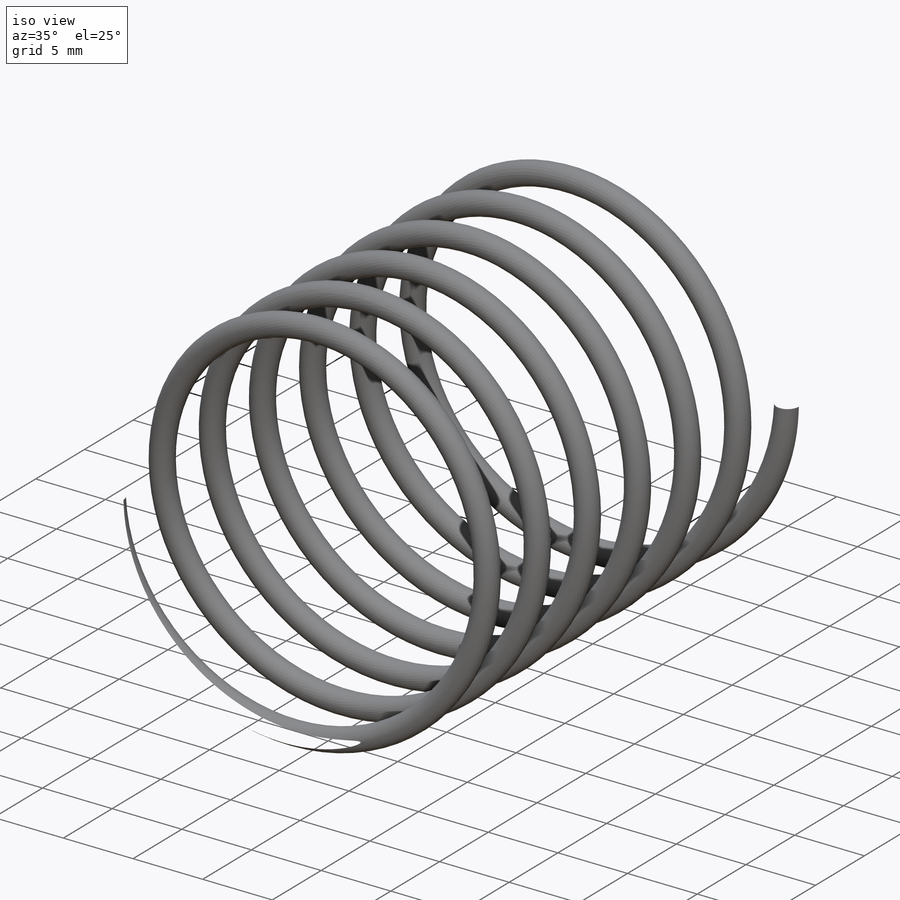
[diagram: iso view]
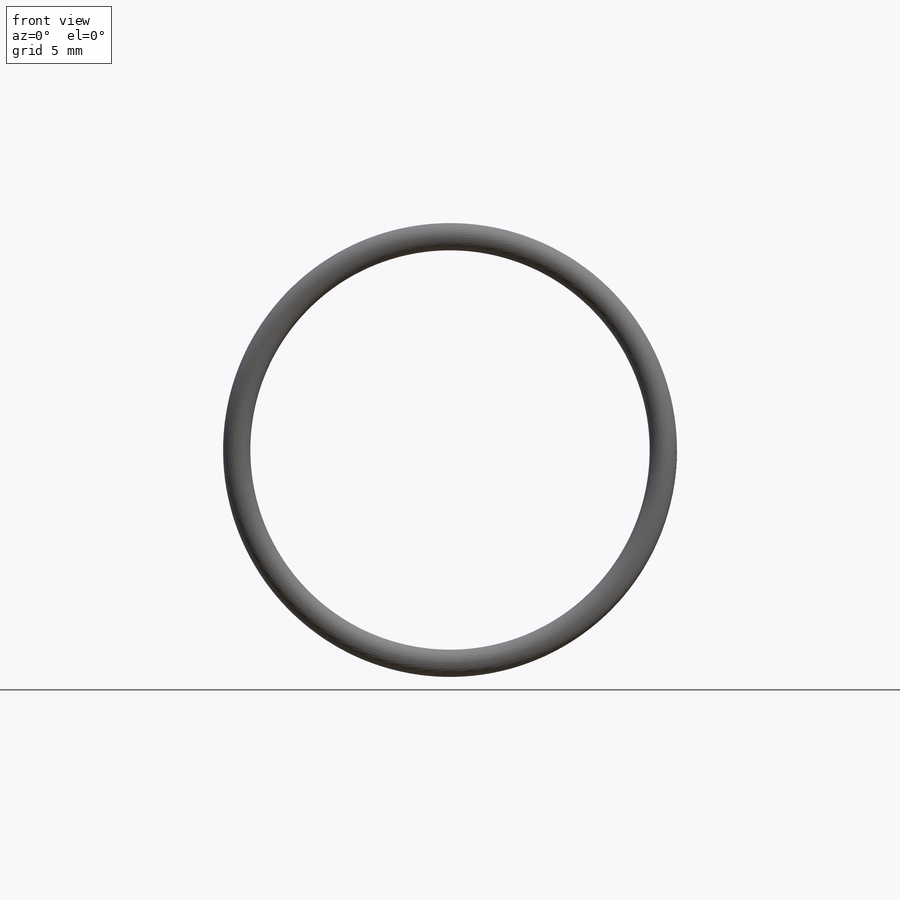
[diagram: front view]
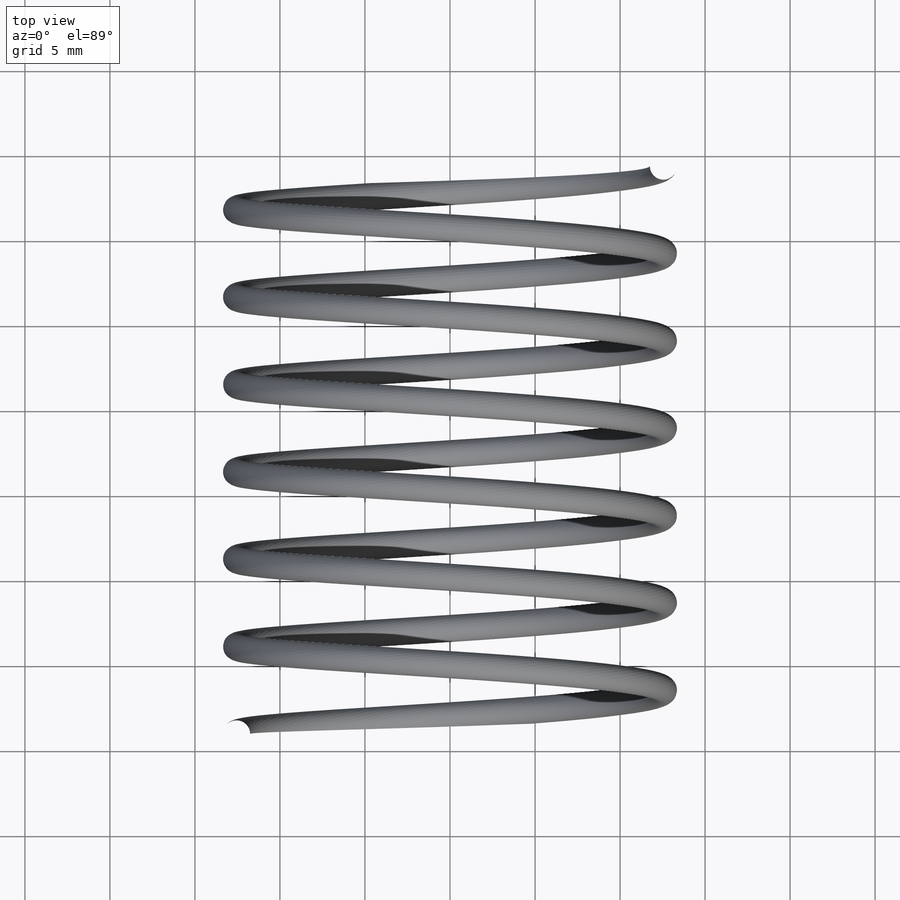
[diagram: top view]
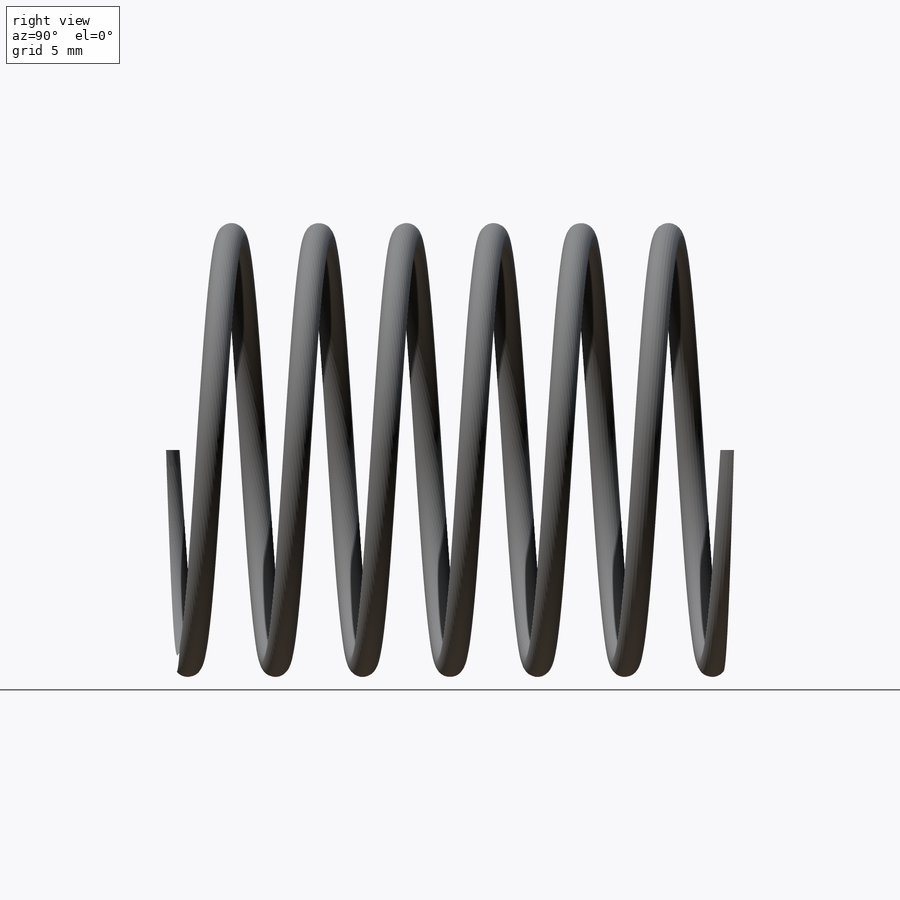
[diagram: right view]
SOLIDWORKS PART (.sldprt)
format: sldprt  version: not decoded by parser v0  size: 899,072 bytes
history: native  units: mm
features: plane x5, sketch x4, material x1, helix x1, sweep x1, revolve x1 (+12 scaffold rows collapsed)
feature tree (25):
  scaffold x12  (default folders/planes/origin — collapsed)
  material  "srafy 1"
  plane  "Přední rovina"
  plane  "Horní rovina"
  plane  "Pravá rovina"
  sketch  "Skica4"  dims[d=1.6mm D2=~10.463355mm D1=26.7mm délka=35.0mm]
  plane  "Rovina1"
  sketch  "Skica1"  dims[D1=10.0mm D2=~82.959881mm D3=~65.063853mm]
  helix  "Šroubovice/spirála1"  Pitch=33.4mm
  sweep  "Táhnout po křivce1"
  sketch  "Skica5"  dims[D1=0.0mm D2=0.0mm]
  revolve  "Rotovat1"  Angle=360deg
  plane  "Rovina2"
  sketch  "Skica6"  dims[c1.Lo=67.0mm c1.L8=10.8mm c1.D1=22.0mm c2.L8=17.1mm c2.F8=46.6mm c2.F=~29.883768mm]
decode coverage: 6 of 7 modeling features carry decoded parameters
note: ~ marks probable driven/reference dimensions
note: suppression state not decoded; provenance and decode notes live in map.json
